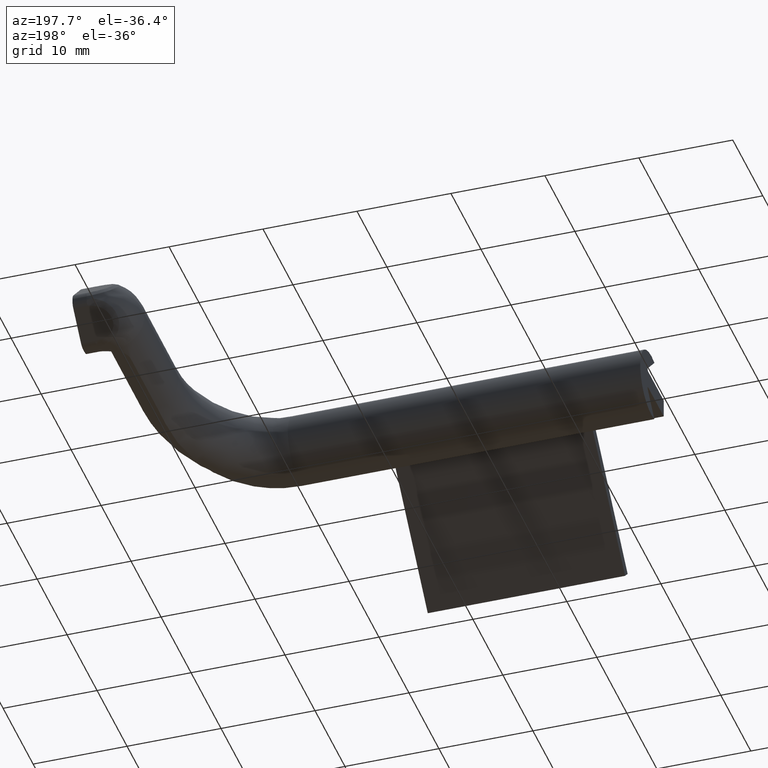
[diagram: clean part render]
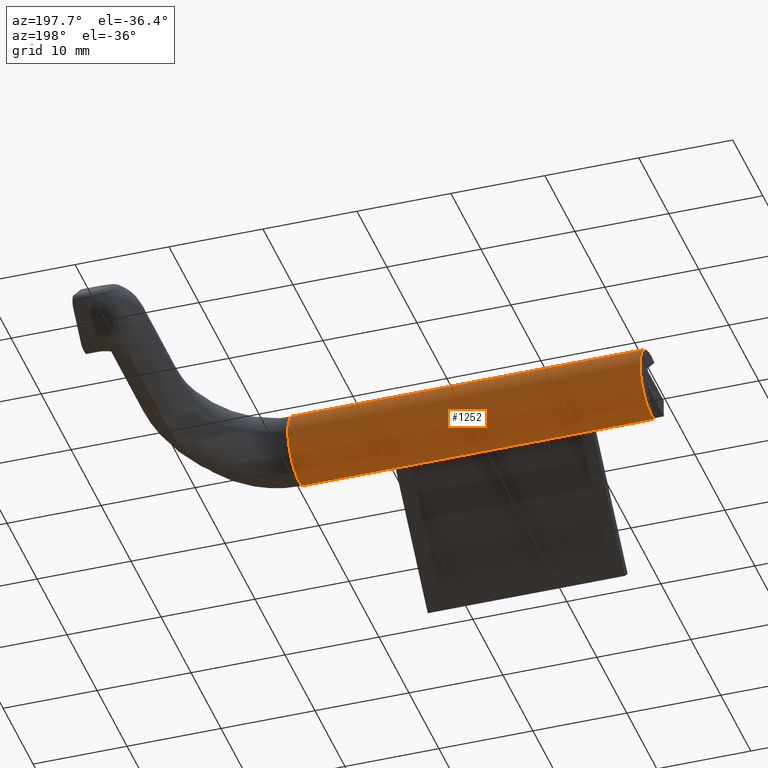
[diagram: same view with one face highlighted and labeled with its STEP entity id]
A machine part, auxiliary view. The second image highlights one B-rep face of the part: STEP entity #1252.
In plain terms, the highlighted cylindrical surface (edge-blend (fillet) strip) has radius 3.7 mm, axis along (1, -0, 0).
Its self-contained STEP definition (entity closure, byte-faithful):
#62=CYLINDRICAL_SURFACE('',#1374,3.7);
#185=FACE_OUTER_BOUND('',#252,.T.);
#252=EDGE_LOOP('',(#1073,#1074,#1075,#1076));
#304=LINE('',#1785,#419);
#357=LINE('',#2492,#472);
#419=VECTOR('',#1453,10.);
#472=VECTOR('',#1636,10.);
#504=CIRCLE('',#1298,3.7);
#535=CIRCLE('',#1372,3.7);
#536=VERTEX_POINT('',#1710);
#537=VERTEX_POINT('',#1711);
#568=VERTEX_POINT('',#1784);
#629=VERTEX_POINT('',#2446);
#646=EDGE_CURVE('',#536,#537,#504,.T.);
#683=EDGE_CURVE('',#536,#568,#304,.T.);
#783=EDGE_CURVE('',#629,#568,#535,.T.);
#789=EDGE_CURVE('',#537,#629,#357,.T.);
#1073=ORIENTED_EDGE('',*,*,#646,.T.);
#1074=ORIENTED_EDGE('',*,*,#789,.T.);
#1075=ORIENTED_EDGE('',*,*,#783,.T.);
#1076=ORIENTED_EDGE('',*,*,#683,.F.);
#1252=ADVANCED_FACE('',(#185),#62,.T.);
#1298=AXIS2_PLACEMENT_3D('',#1712,#1399,#1400);
#1372=AXIS2_PLACEMENT_3D('',#2447,#1626,#1627);
#1374=AXIS2_PLACEMENT_3D('',#2491,#1634,#1635);
#1399=DIRECTION('center_axis',(1.,1.88187772947009E-16,0.));
#1400=DIRECTION('ref_axis',(-2.25045207694277E-16,-0.270270270270257,0.962784493543619));
#1453=DIRECTION('',(1.,-8.32667268468865E-16,0.));
#1626=DIRECTION('center_axis',(-1.,-3.86673217053726E-15,-2.77555756156289E-16));
#1627=DIRECTION('ref_axis',(7.77836370672753E-16,-0.270270270270257,0.962784493543619));
#1634=DIRECTION('center_axis',(1.,-8.32667268468865E-16,0.));
#1635=DIRECTION('ref_axis',(8.32667268468865E-16,1.,-6.3762808846715E-16));
#1636=DIRECTION('',(1.,-8.32667268468865E-16,0.));
#1710=CARTESIAN_POINT('',(16.5,3.15685424949248,-3.56230262611139));
#1711=CARTESIAN_POINT('',(16.5,3.15685424949248,3.56230262611139));
#1712=CARTESIAN_POINT('Origin',(16.5,4.15685424949244,0.));
#1784=CARTESIAN_POINT('',(54.,3.15685424949245,-3.56230262611139));
#1785=CARTESIAN_POINT('',(13.9999999999999,3.15685424949249,-3.56230262611139));
#2446=CARTESIAN_POINT('',(54.,3.15685424949245,3.56230262611139));
#2447=CARTESIAN_POINT('Origin',(54.,4.1568542494924,0.));
#2491=CARTESIAN_POINT('Origin',(13.9999999999999,4.15685424949244,0.));
#2492=CARTESIAN_POINT('',(13.9999999999999,3.15685424949249,3.56230262611139));